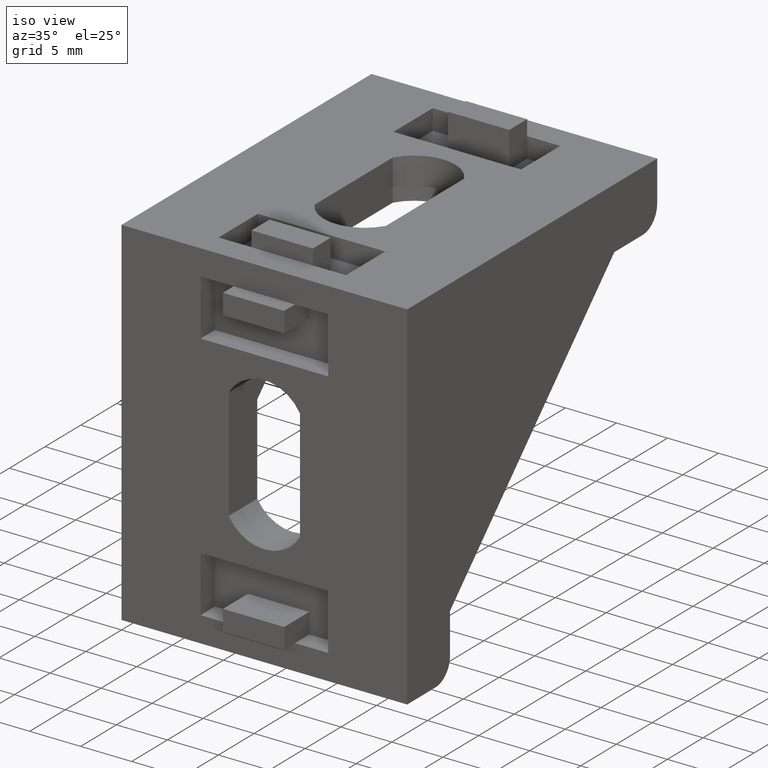
[diagram: clean part render]
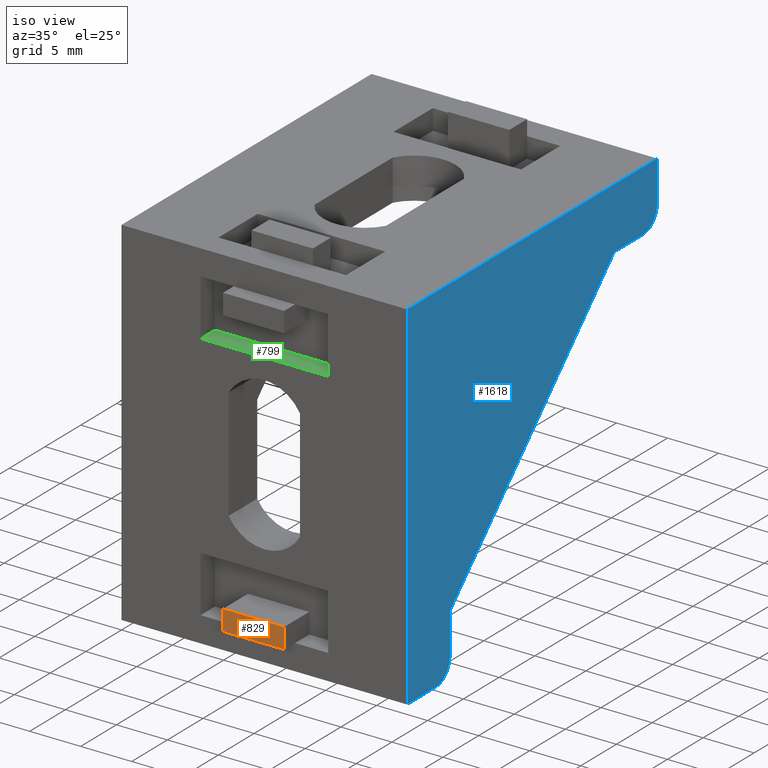
[diagram: same view with three faces highlighted in distinct colors, each labeled with its STEP entity id]
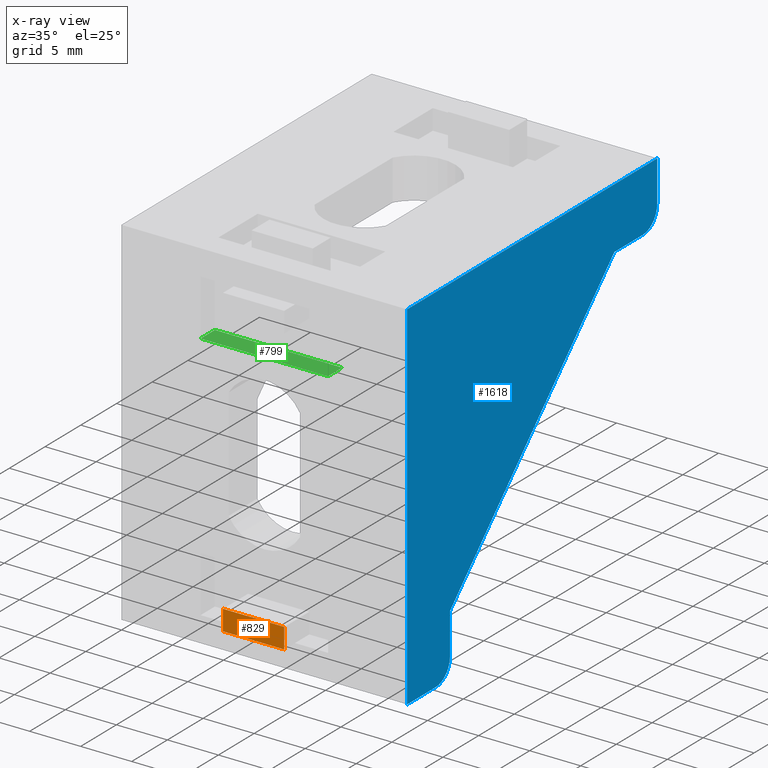
[diagram: x-ray of the same camera — body ghosted, the three highlighted faces saturated]
A machine part, iso view with three faces highlighted in distinct colors.
The next image is the same camera in x-ray (body ghosted, the three faces saturated) — at least one of them is partly hidden behind the body in this view.
Their STEP definitions:

[orange] entity #829 — the highlighted planar face has unit normal (0, -1, 0).
#124 = CARTESIAN_POINT ( 'NONE',  ( 14.00000000000000000, -1.500000000000000000, -30.50000000000000000 ) ) ;
#125 = DIRECTION ( 'NONE',  ( -1.000000000000000000, -0.0000000000000000000, -0.0000000000000000000 ) ) ;
#277 = CARTESIAN_POINT ( 'NONE',  ( 17.00000000000000000, -1.500000000000000000, -30.50000000000000000 ) ) ;
#281 = CARTESIAN_POINT ( 'NONE',  ( 11.00000000000000000, -1.500000000000000000, -30.50000000000000000 ) ) ;
#306 = CARTESIAN_POINT ( 'NONE',  ( 17.00000000000000000, -1.500000000000000000, -32.50000000000000000 ) ) ;
#323 = CARTESIAN_POINT ( 'NONE',  ( 11.00000000000000000, -1.500000000000000000, -32.50000000000000000 ) ) ;
#451 = FACE_OUTER_BOUND ( 'NONE', #1138, .T. ) ;
#746 = PLANE ( 'NONE',  #2146 ) ;
#747 = CARTESIAN_POINT ( 'NONE',  ( 11.00000000000000000, -1.500000000000000000, -30.50000000000000000 ) ) ;
#748 = DIRECTION ( 'NONE',  ( 0.0000000000000000000, -1.000000000000000000, 0.0000000000000000000 ) ) ;
#749 = DIRECTION ( 'NONE',  ( 0.0000000000000000000, 0.0000000000000000000, -1.000000000000000000 ) ) ;
#829 = ADVANCED_FACE ( 'NONE', ( #451 ), #746, .T. ) ;
#960 = CARTESIAN_POINT ( 'NONE',  ( 14.00000000000000000, -1.500000000000000000, -32.50000000000000000 ) ) ;
#961 = DIRECTION ( 'NONE',  ( 1.000000000000000000, 0.0000000000000000000, 0.0000000000000000000 ) ) ;
#990 = CARTESIAN_POINT ( 'NONE',  ( 11.00000000000000000, -1.500000000000000000, -31.50000000000000000 ) ) ;
#991 = DIRECTION ( 'NONE',  ( 0.0000000000000000000, 0.0000000000000000000, -1.000000000000000000 ) ) ;
#1046 = ORIENTED_EDGE ( 'NONE', *, *, #1351, .T. ) ;
#1047 = ORIENTED_EDGE ( 'NONE', *, *, #1264, .T. ) ;
#1048 = ORIENTED_EDGE ( 'NONE', *, *, #1282, .T. ) ;
#1049 = ORIENTED_EDGE ( 'NONE', *, *, #1296, .T. ) ;
#1138 = EDGE_LOOP ( 'NONE', ( #1049, #1048, #1047, #1046 ) ) ;
#1264 = EDGE_CURVE ( 'NONE', #2227, #2053, #1793, .T. ) ;
#1282 = EDGE_CURVE ( 'NONE', #2244, #2227, #1831, .T. ) ;
#1296 = EDGE_CURVE ( 'NONE', #2057, #2244, #1859, .T. ) ;
#1351 = EDGE_CURVE ( 'NONE', #2053, #2057, #1902, .T. ) ;
#1793 = LINE ( 'NONE', #2126, #1794 ) ;
#1794 = VECTOR ( 'NONE', #2127, 1000.000000000000000 ) ;
#1831 = LINE ( 'NONE', #960, #1833 ) ;
#1833 = VECTOR ( 'NONE', #961, 1000.000000000000000 ) ;
#1859 = LINE ( 'NONE', #990, #1861 ) ;
#1861 = VECTOR ( 'NONE', #991, 1000.000000000000000 ) ;
#1902 = LINE ( 'NONE', #124, #1903 ) ;
#1903 = VECTOR ( 'NONE', #125, 1000.000000000000000 ) ;
#2053 = VERTEX_POINT ( 'NONE', #277 ) ;
#2057 = VERTEX_POINT ( 'NONE', #281 ) ;
#2126 = CARTESIAN_POINT ( 'NONE',  ( 17.00000000000000000, -1.500000000000000000, -31.50000000000000000 ) ) ;
#2127 = DIRECTION ( 'NONE',  ( 0.0000000000000000000, 0.0000000000000000000, 1.000000000000000000 ) ) ;
#2146 = AXIS2_PLACEMENT_3D ( 'NONE', #747, #748, #749 ) ;
#2227 = VERTEX_POINT ( 'NONE', #306 ) ;
#2244 = VERTEX_POINT ( 'NONE', #323 ) ;

[blue] entity #1618 — the highlighted planar face has unit normal (-1, 0, 0).
#8 = EDGE_CURVE ( 'NONE', #49, #2234, #1706, .T. ) ;
#10 = EDGE_CURVE ( 'NONE', #49, #58, #1710, .T. ) ;
#19 = EDGE_CURVE ( 'NONE', #58, #2215, #1735, .T. ) ;
#49 = VERTEX_POINT ( 'NONE', #1961 ) ;
#50 = VERTEX_POINT ( 'NONE', #1960 ) ;
#58 = VERTEX_POINT ( 'NONE', #1396 ) ;
#64 = VERTEX_POINT ( 'NONE', #1391 ) ;
#71 = VERTEX_POINT ( 'NONE', #1528 ) ;
#91 = VERTEX_POINT ( 'NONE', #1972 ) ;
#218 = PLANE ( 'NONE',  #2175 ) ;
#219 = CARTESIAN_POINT ( 'NONE',  ( 28.00000000000000000, 0.0000000000000000000, -35.00000000000000000 ) ) ;
#220 = DIRECTION ( 'NONE',  ( -1.000000000000000000, 0.0000000000000000000, 0.0000000000000000000 ) ) ;
#221 = DIRECTION ( 'NONE',  ( 0.0000000000000000000, 0.0000000000000000000, 1.000000000000000000 ) ) ;
#294 = CARTESIAN_POINT ( 'NONE',  ( 28.00000000000000000, 4.000000000000000000, -35.00000000000000000 ) ) ;
#299 = CARTESIAN_POINT ( 'NONE',  ( 28.00000000000000000, 33.00000000000000000, -5.999999992499999400 ) ) ;
#313 = CARTESIAN_POINT ( 'NONE',  ( 28.00000000000000000, 35.00000000000000000, 0.0000000000000000000 ) ) ;
#335 = CARTESIAN_POINT ( 'NONE',  ( 28.00000000000000000, 35.00000000000000000, -17.50000000000000000 ) ) ;
#336 = DIRECTION ( 'NONE',  ( -0.0000000000000000000, -0.0000000000000000000, -1.000000000000000000 ) ) ;
#359 = CARTESIAN_POINT ( 'NONE',  ( 28.00000000000000000, 4.000000000000000000, -33.00000000000000000 ) ) ;
#360 = DIRECTION ( 'NONE',  ( -1.000000000000000000, -8.673617379884026600E-016, -0.0000000000000000000 ) ) ;
#361 = DIRECTION ( 'NONE',  ( 0.0000000000000000000, -1.000000000000000000, 0.0000000000000000000 ) ) ;
#367 = CARTESIAN_POINT ( 'NONE',  ( 28.00000000000000000, 5.999999985000000500, -17.50000000000000000 ) ) ;
#368 = DIRECTION ( 'NONE',  ( -0.0000000000000000000, -0.0000000000000000000, -1.000000000000000000 ) ) ;
#375 = CARTESIAN_POINT ( 'NONE',  ( 27.99999999999999600, 29.00000000000000000, -6.000000000000000000 ) ) ;
#376 = DIRECTION ( 'NONE',  ( 0.0000000000000000000, -0.7071067811865474600, -0.7071067811865474600 ) ) ;
#383 = CARTESIAN_POINT ( 'NONE',  ( 28.00000000000000000, 17.50000000000000000, -5.999999984999999600 ) ) ;
#384 = DIRECTION ( 'NONE',  ( -0.0000000000000000000, -1.000000000000000000, -0.0000000000000000000 ) ) ;
#385 = CARTESIAN_POINT ( 'NONE',  ( 28.00000000000000000, 33.00000000000000000, -4.000000000000000000 ) ) ;
#386 = DIRECTION ( 'NONE',  ( -1.000000000000000000, -8.673617379884026600E-016, -0.0000000000000000000 ) ) ;
#387 = DIRECTION ( 'NONE',  ( 0.0000000000000000000, -1.000000000000000000, 0.0000000000000000000 ) ) ;
#1122 = EDGE_LOOP ( 'NONE', ( #1673, #1674, #1675, #1676, #1677, #1189, #1190, #1191, #1192 ) ) ;
#1189 = ORIENTED_EDGE ( 'NONE', *, *, #2250, .F. ) ;
#1190 = ORIENTED_EDGE ( 'NONE', *, *, #8, .F. ) ;
#1191 = ORIENTED_EDGE ( 'NONE', *, *, #10, .T. ) ;
#1192 = ORIENTED_EDGE ( 'NONE', *, *, #19, .T. ) ;
#1328 = AXIS2_PLACEMENT_3D ( 'NONE', #385, #386, #387 ) ;
#1330 = AXIS2_PLACEMENT_3D ( 'NONE', #359, #360, #361 ) ;
#1391 = CARTESIAN_POINT ( 'NONE',  ( 27.99999999999999600, 29.00000000750000200, -5.999999992499999400 ) ) ;
#1396 = CARTESIAN_POINT ( 'NONE',  ( 28.00000000000000000, 0.0000000000000000000, -35.00000000000000000 ) ) ;
#1432 = CIRCLE ( 'NONE', #1328, 2.000000000000001800 ) ;
#1435 = VECTOR ( 'NONE', #384, 1000.000000000000000 ) ;
#1437 = LINE ( 'NONE', #383, #1435 ) ;
#1445 = VECTOR ( 'NONE', #376, 1000.000000000000100 ) ;
#1447 = LINE ( 'NONE', #375, #1445 ) ;
#1452 = VECTOR ( 'NONE', #368, 1000.000000000000000 ) ;
#1453 = LINE ( 'NONE', #367, #1452 ) ;
#1459 = CIRCLE ( 'NONE', #1330, 2.000000000000001800 ) ;
#1494 = VECTOR ( 'NONE', #336, 1000.000000000000000 ) ;
#1495 = LINE ( 'NONE', #335, #1494 ) ;
#1510 = FACE_OUTER_BOUND ( 'NONE', #1122, .T. ) ;
#1528 = CARTESIAN_POINT ( 'NONE',  ( 27.99999999999999600, 5.999999992500002900, -29.00000000749999900 ) ) ;
#1618 = ADVANCED_FACE ( 'NONE', ( #1510 ), #218, .F. ) ;
#1673 = ORIENTED_EDGE ( 'NONE', *, *, #2261, .F. ) ;
#1674 = ORIENTED_EDGE ( 'NONE', *, *, #2264, .F. ) ;
#1675 = ORIENTED_EDGE ( 'NONE', *, *, #2268, .F. ) ;
#1676 = ORIENTED_EDGE ( 'NONE', *, *, #2272, .F. ) ;
#1677 = ORIENTED_EDGE ( 'NONE', *, *, #2273, .F. ) ;
#1706 = LINE ( 'NONE', #2017, #1707 ) ;
#1707 = VECTOR ( 'NONE', #2016, 1000.000000000000000 ) ;
#1710 = LINE ( 'NONE', #2003, #1711 ) ;
#1711 = VECTOR ( 'NONE', #2000, 1000.000000000000000 ) ;
#1735 = LINE ( 'NONE', #2007, #1736 ) ;
#1736 = VECTOR ( 'NONE', #2004, 1000.000000000000000 ) ;
#1960 = CARTESIAN_POINT ( 'NONE',  ( 27.99999999999999600, 35.00000000000000000, -4.000000000000000000 ) ) ;
#1961 = CARTESIAN_POINT ( 'NONE',  ( 28.00000000000000000, 0.0000000000000000000, 0.0000000000000000000 ) ) ;
#1972 = CARTESIAN_POINT ( 'NONE',  ( 27.99999999999999600, 5.999999992500002900, -33.00000000020509800 ) ) ;
#2000 = DIRECTION ( 'NONE',  ( -0.0000000000000000000, -0.0000000000000000000, -1.000000000000000000 ) ) ;
#2003 = CARTESIAN_POINT ( 'NONE',  ( 28.00000000000000000, 0.0000000000000000000, -17.50000000000000000 ) ) ;
#2004 = DIRECTION ( 'NONE',  ( 0.0000000000000000000, 1.000000000000000000, 0.0000000000000000000 ) ) ;
#2007 = CARTESIAN_POINT ( 'NONE',  ( 28.00000000000000000, 2.000000000000000000, -35.00000000000000000 ) ) ;
#2016 = DIRECTION ( 'NONE',  ( 0.0000000000000000000, 1.000000000000000000, 0.0000000000000000000 ) ) ;
#2017 = CARTESIAN_POINT ( 'NONE',  ( 28.00000000000000000, 17.50000000000000000, 0.0000000000000000000 ) ) ;
#2175 = AXIS2_PLACEMENT_3D ( 'NONE', #219, #220, #221 ) ;
#2215 = VERTEX_POINT ( 'NONE', #294 ) ;
#2220 = VERTEX_POINT ( 'NONE', #299 ) ;
#2234 = VERTEX_POINT ( 'NONE', #313 ) ;
#2250 = EDGE_CURVE ( 'NONE', #2234, #50, #1495, .T. ) ;
#2261 = EDGE_CURVE ( 'NONE', #91, #2215, #1459, .T. ) ;
#2264 = EDGE_CURVE ( 'NONE', #71, #91, #1453, .T. ) ;
#2268 = EDGE_CURVE ( 'NONE', #64, #71, #1447, .T. ) ;
#2272 = EDGE_CURVE ( 'NONE', #2220, #64, #1437, .T. ) ;
#2273 = EDGE_CURVE ( 'NONE', #50, #2220, #1432, .T. ) ;

[green] entity #799 — the highlighted planar face has unit normal (0, 0, -1).
#7 = EDGE_CURVE ( 'NONE', #82, #2245, #1704, .T. ) ;
#13 = EDGE_CURVE ( 'NONE', #82, #62, #1718, .T. ) ;
#42 = CARTESIAN_POINT ( 'NONE',  ( 7.749999997999999800, 0.0000000000000000000, -8.000000003750001200 ) ) ;
#45 = PLANE ( 'NONE',  #1315 ) ;
#62 = VERTEX_POINT ( 'NONE', #1395 ) ;
#82 = VERTEX_POINT ( 'NONE', #42 ) ;
#318 = CARTESIAN_POINT ( 'NONE',  ( 20.25000000000000000, 2.000000000000000000, -8.000000000000000000 ) ) ;
#324 = CARTESIAN_POINT ( 'NONE',  ( 7.750000000000000000, 2.000000000000000000, -8.000000000000000000 ) ) ;
#425 = LINE ( 'NONE', #2081, #428 ) ;
#428 = VECTOR ( 'NONE', #2082, 1000.000000000000000 ) ;
#660 = ORIENTED_EDGE ( 'NONE', *, *, #1283, .F. ) ;
#661 = ORIENTED_EDGE ( 'NONE', *, *, #1233, .F. ) ;
#662 = ORIENTED_EDGE ( 'NONE', *, *, #7, .F. ) ;
#663 = ORIENTED_EDGE ( 'NONE', *, *, #13, .T. ) ;
#799 = ADVANCED_FACE ( 'NONE', ( #1754 ), #45, .F. ) ;
#962 = CARTESIAN_POINT ( 'NONE',  ( 20.25000000000000000, 1.000000000000000000, -8.000000000000000000 ) ) ;
#963 = DIRECTION ( 'NONE',  ( -0.0000000000000000000, -1.000000000000000000, -0.0000000000000000000 ) ) ;
#1108 = EDGE_LOOP ( 'NONE', ( #660, #661, #662, #663 ) ) ;
#1233 = EDGE_CURVE ( 'NONE', #2245, #2239, #425, .T. ) ;
#1283 = EDGE_CURVE ( 'NONE', #2239, #62, #1834, .T. ) ;
#1315 = AXIS2_PLACEMENT_3D ( 'NONE', #1981, #1530, #1531 ) ;
#1395 = CARTESIAN_POINT ( 'NONE',  ( 20.25000000200000000, 0.0000000000000000000, -8.000000003750001200 ) ) ;
#1530 = DIRECTION ( 'NONE',  ( 0.0000000000000000000, 0.0000000000000000000, -1.000000000000000000 ) ) ;
#1531 = DIRECTION ( 'NONE',  ( -1.000000000000000000, 0.0000000000000000000, 0.0000000000000000000 ) ) ;
#1704 = LINE ( 'NONE', #2019, #1705 ) ;
#1705 = VECTOR ( 'NONE', #2018, 1000.000000000000000 ) ;
#1718 = LINE ( 'NONE', #1992, #1719 ) ;
#1719 = VECTOR ( 'NONE', #1991, 1000.000000000000000 ) ;
#1754 = FACE_OUTER_BOUND ( 'NONE', #1108, .T. ) ;
#1834 = LINE ( 'NONE', #962, #1836 ) ;
#1836 = VECTOR ( 'NONE', #963, 1000.000000000000000 ) ;
#1981 = CARTESIAN_POINT ( 'NONE',  ( 20.25000000000000000, 0.0000000000000000000, -8.000000000000000000 ) ) ;
#1991 = DIRECTION ( 'NONE',  ( 1.000000000000000000, 0.0000000000000000000, 0.0000000000000000000 ) ) ;
#1992 = CARTESIAN_POINT ( 'NONE',  ( 14.00000000000000000, 0.0000000000000000000, -8.000000015000003000 ) ) ;
#2018 = DIRECTION ( 'NONE',  ( 0.0000000000000000000, 1.000000000000000000, 0.0000000000000000000 ) ) ;
#2019 = CARTESIAN_POINT ( 'NONE',  ( 7.750000000000000000, 1.000000000000000000, -8.000000000000000000 ) ) ;
#2081 = CARTESIAN_POINT ( 'NONE',  ( 14.00000000000000000, 2.000000000000000000, -8.000000000000000000 ) ) ;
#2082 = DIRECTION ( 'NONE',  ( 1.000000000000000000, -0.0000000000000000000, -0.0000000000000000000 ) ) ;
#2239 = VERTEX_POINT ( 'NONE', #318 ) ;
#2245 = VERTEX_POINT ( 'NONE', #324 ) ;